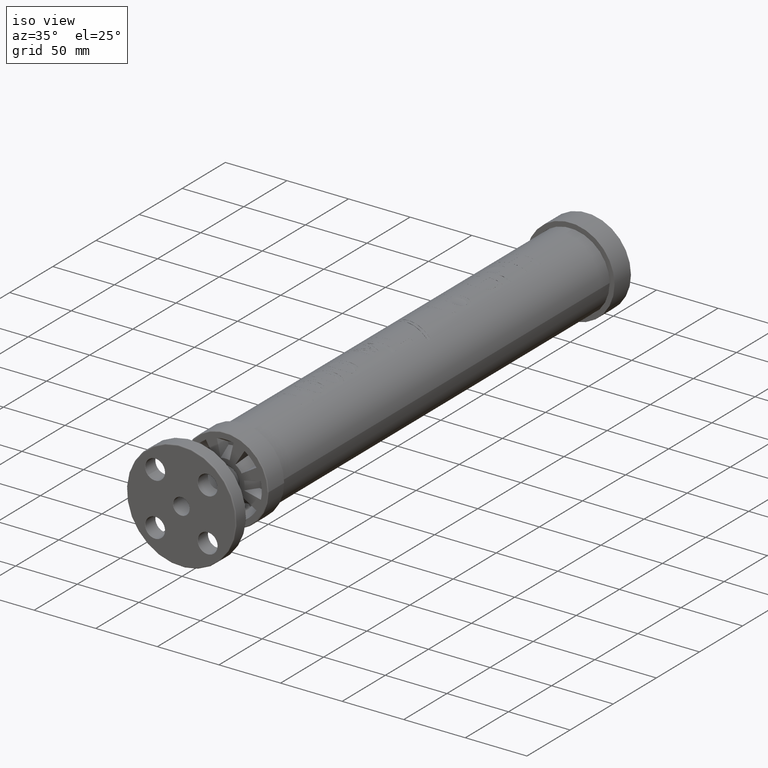
[diagram: clean part render]
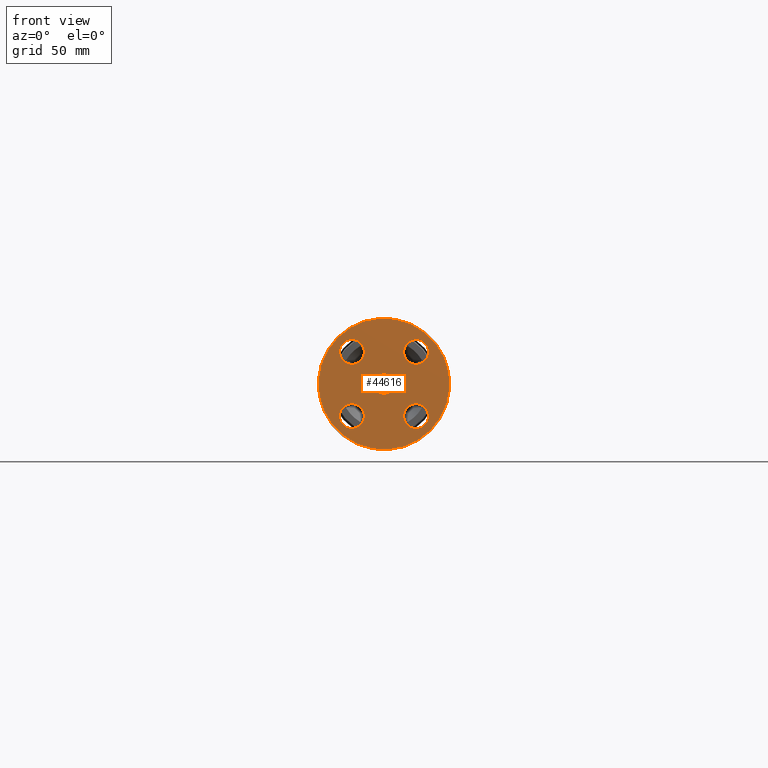
[diagram: tour spotlight — one face highlighted and labeled with its STEP entity id]
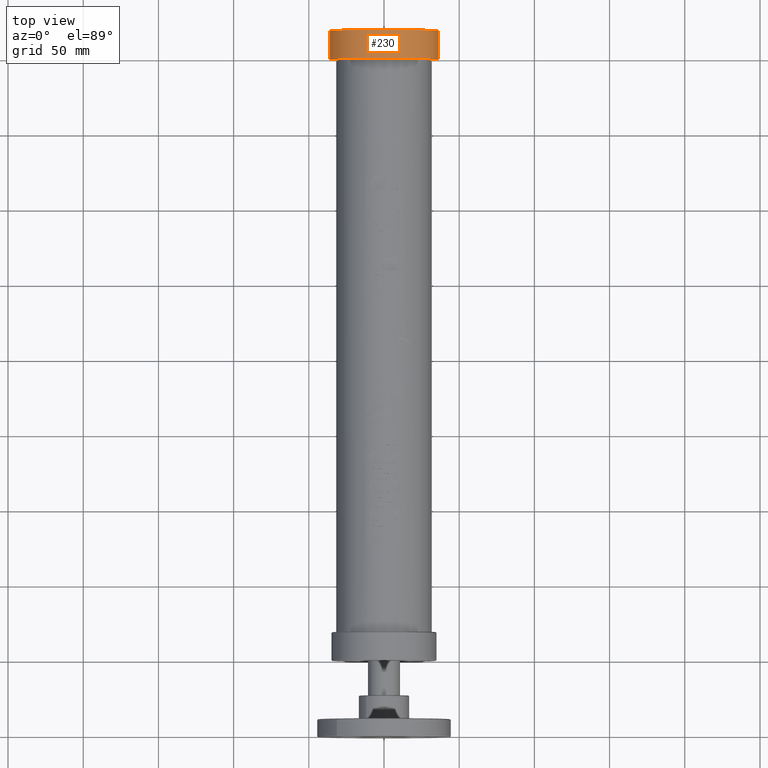
[diagram: tour spotlight — one face highlighted and labeled with its STEP entity id]
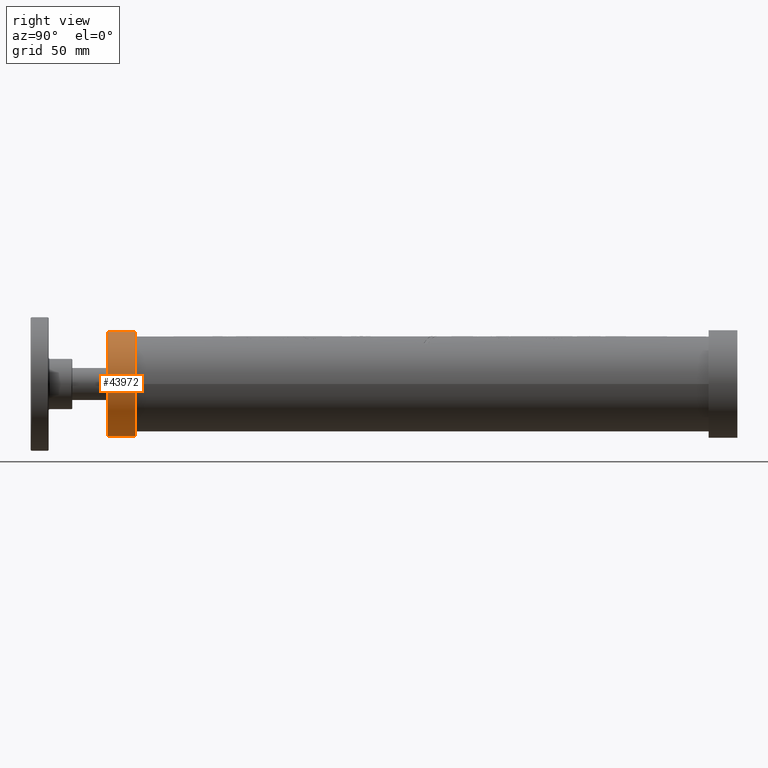
[diagram: tour spotlight — one face highlighted and labeled with its STEP entity id]
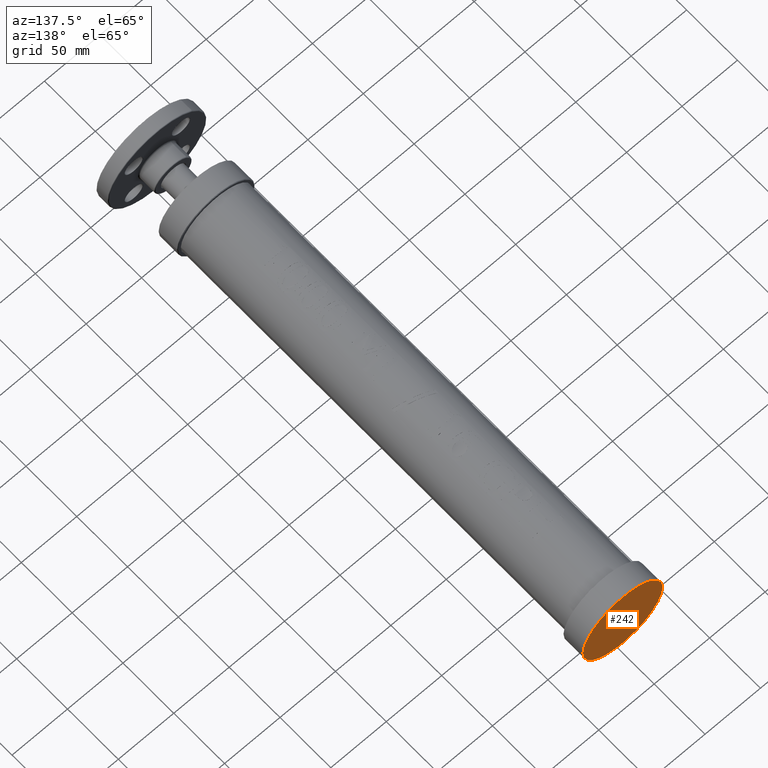
[diagram: tour spotlight — one face highlighted and labeled with its STEP entity id]
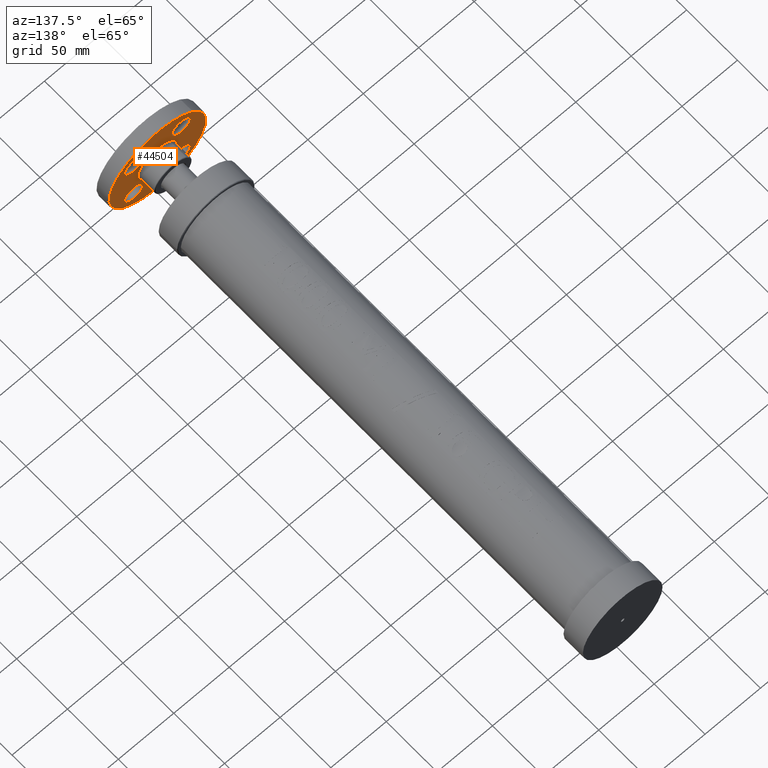
[diagram: tour spotlight — one face highlighted and labeled with its STEP entity id]
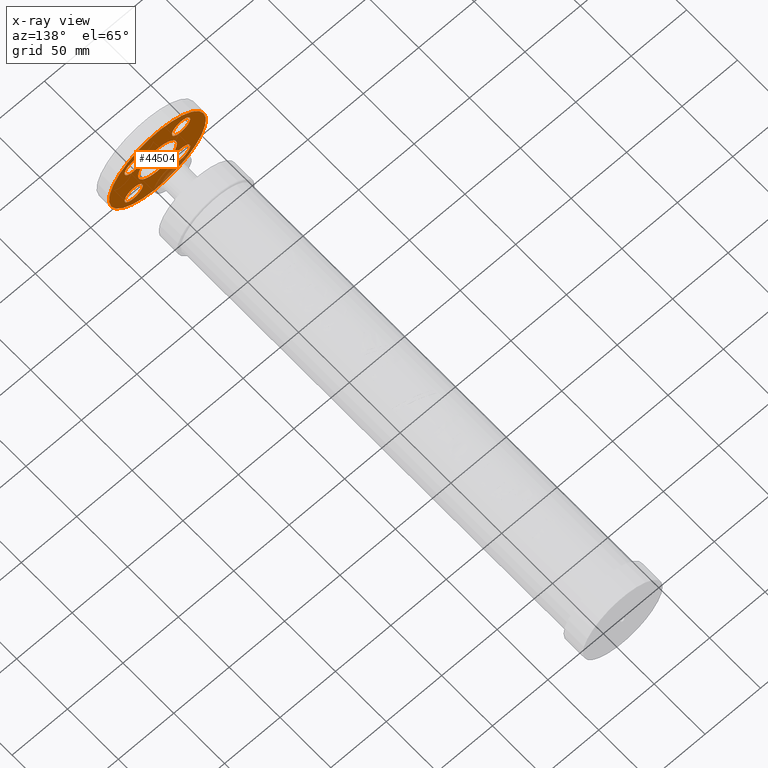
[diagram: x-ray of the same camera — body ghosted, this tour face saturated]
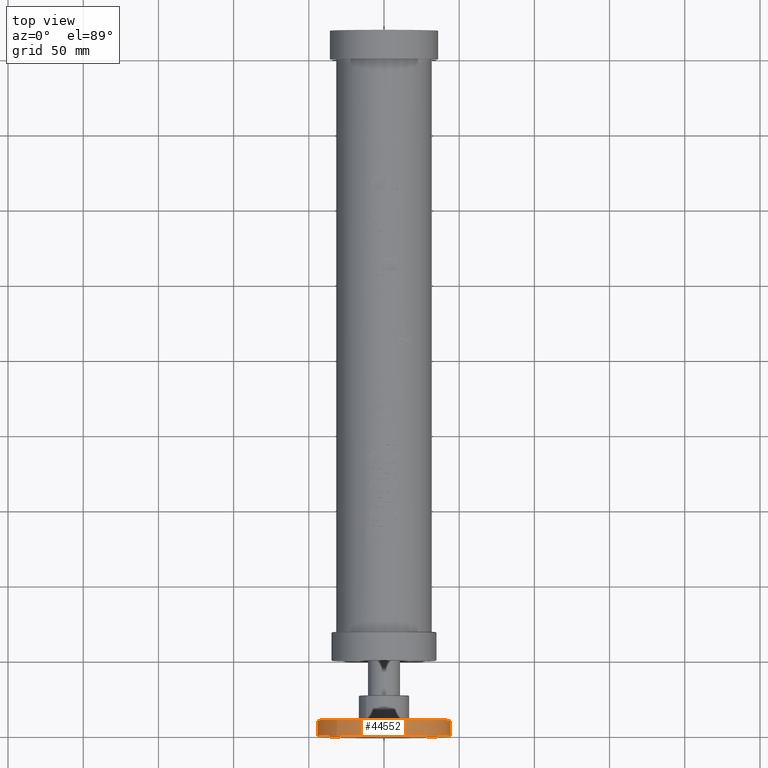
[diagram: tour spotlight — one face highlighted and labeled with its STEP entity id]
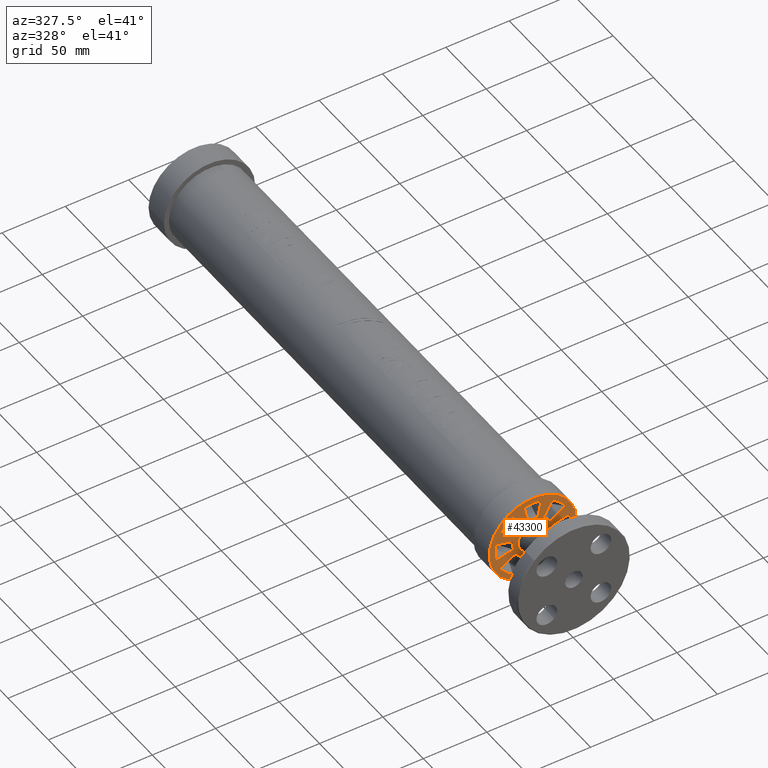
[diagram: tour spotlight — one face highlighted and labeled with its STEP entity id]
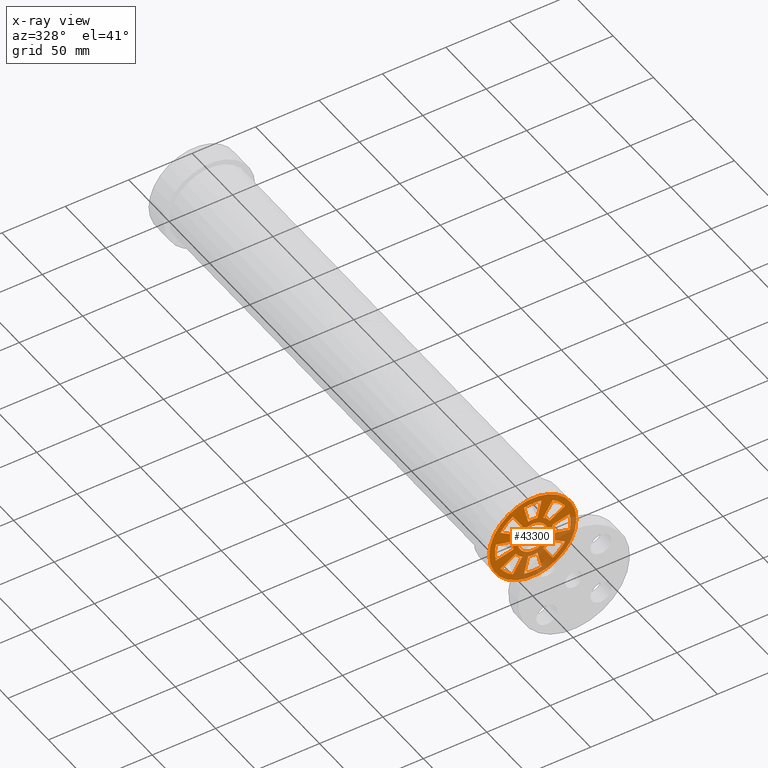
[diagram: x-ray of the same camera — body ghosted, this tour face saturated]
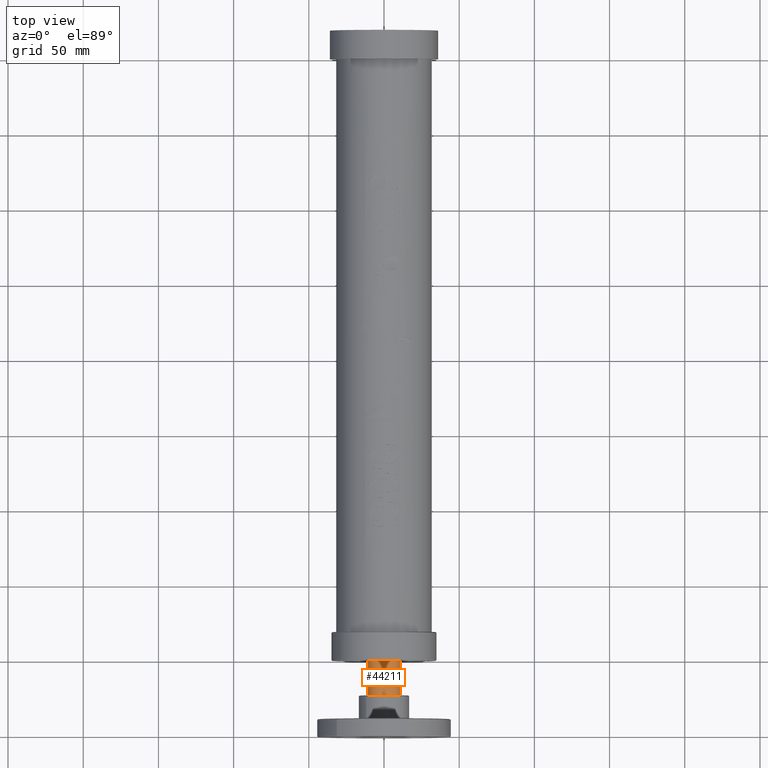
[diagram: tour spotlight — one face highlighted and labeled with its STEP entity id]
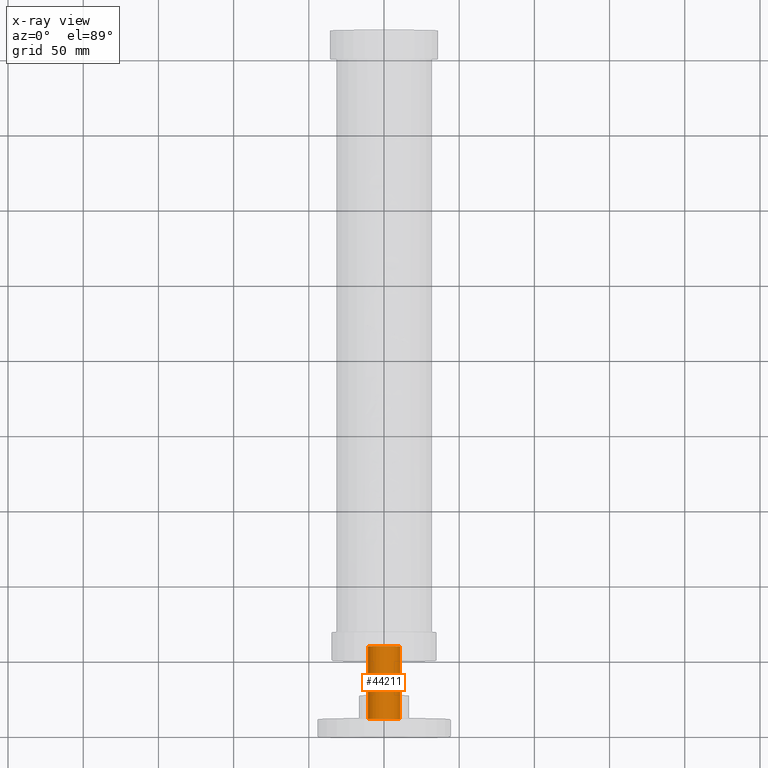
[diagram: x-ray of the same camera — body ghosted, this tour face saturated]
A machine part: a face-by-face anatomy tour. The part has 260 B-rep faces; the first image is the clean iso view, then the 8 largest visible faces are spotlighted one at a time (largest first), each with its STEP entity span.

Face 1 — front view, entity #44616. In plain terms, the highlighted planar face has unit normal (0, -1, 0).
Definition (entity closure, byte-faithful):
#44510=CARTESIAN_POINT('',(-1.216223663640862,-1.999999999999990,1.216223663640857));
#44511=VERTEX_POINT('',#44510);
#44512=CARTESIAN_POINT('',(6.310126E-017,-1.999999999999992,-5.024153E-015));
#44513=DIRECTION('',(7.121303E-016,1.000000000000000,-7.121303E-016));
#44514=DIRECTION('',(0.707106781186547,-1.007104E-015,-0.707106781186547));
#44515=AXIS2_PLACEMENT_3D('',#44512,#44513,#44514);
#44516=CIRCLE('',#44515,1.720000000000000);
#44517=EDGE_CURVE('',#44511,#44511,#44516,.T.);
#44553=CARTESIAN_POINT('',(-0.711702975264260,-1.999999999999991,0.711702975264255));
#44554=DIRECTION('',(0.0,-1.0,0.0));
#44555=DIRECTION('',(0.707106781186548,0.0,0.707106781186547));
#44556=AXIS2_PLACEMENT_3D('',#44553,#44554,#44555);
#44557=PLANE('',#44556);
#44558=ORIENTED_EDGE('',*,*,#44517,.F.);
#44559=EDGE_LOOP('',(#44558));
#44560=FACE_OUTER_BOUND('',#44559,.T.);
#44561=CARTESIAN_POINT('',(0.609879598773398,-1.999999999999992,1.069499006544648));
#44562=VERTEX_POINT('',#44561);
#44563=CARTESIAN_POINT('',(0.839689302659026,-1.999999999999993,0.839689302659020));
#44564=DIRECTION('',(-7.121303E-016,-1.0,7.121303E-016));
#44565=DIRECTION('',(0.707106781186547,-1.007104E-015,-0.707106781186548));
#44566=AXIS2_PLACEMENT_3D('',#44563,#44564,#44565);
#44567=CIRCLE('',#44566,0.325000000000000);
#44568=EDGE_CURVE('',#44562,#44562,#44567,.T.);
#44569=ORIENTED_EDGE('',*,*,#44568,.F.);
#44570=EDGE_LOOP('',(#44569));
#44571=FACE_BOUND('',#44570,.T.);
#44572=CARTESIAN_POINT('',(1.069499006544653,-1.999999999999993,-0.609879598773402));
#44573=VERTEX_POINT('',#44572);
#44574=CARTESIAN_POINT('',(0.839689302659025,-1.999999999999993,-0.839689302659030));
#44575=DIRECTION('',(-3.723273E-016,-1.0,-3.723273E-016));
#44576=DIRECTION('',(-0.707106781186548,5.265503E-016,-0.707106781186547));
#44577=AXIS2_PLACEMENT_3D('',#44574,#44575,#44576);
#44578=CIRCLE('',#44577,0.325000000000000);
#44579=EDGE_CURVE('',#44573,#44573,#44578,.T.);
#44580=ORIENTED_EDGE('',*,*,#44579,.F.);
#44581=EDGE_LOOP('',(#44580));
#44582=FACE_BOUND('',#44581,.T.);
#44583=CARTESIAN_POINT('',(-0.609879598773397,-1.999999999999991,-1.069499006544659));
#44584=VERTEX_POINT('',#44583);
#44585=CARTESIAN_POINT('',(-0.839689302659025,-1.999999999999991,-0.839689302659030));
#44586=DIRECTION('',(-7.121303E-016,-1.0,7.121303E-016));
#44587=DIRECTION('',(-0.707106781186547,1.007104E-015,0.707106781186548));
#44588=AXIS2_PLACEMENT_3D('',#44585,#44586,#44587);
#44589=CIRCLE('',#44588,0.325000000000000);
#44590=EDGE_CURVE('',#44584,#44584,#44589,.T.);
#44591=ORIENTED_EDGE('',*,*,#44590,.F.);
#44592=EDGE_LOOP('',(#44591));
#44593=FACE_BOUND('',#44592,.T.);
#44594=CARTESIAN_POINT('',(-0.193040151263927,-1.999999999999991,0.193040151263922));
#44595=VERTEX_POINT('',#44594);
#44596=CARTESIAN_POINT('',(6.310126E-017,-1.999999999999992,-5.024153E-015));
#44597=DIRECTION('',(-7.121303E-016,-1.000000000000000,7.121303E-016));
#44598=DIRECTION('',(0.707106781186547,-1.007104E-015,-0.707106781186548));
#44599=AXIS2_PLACEMENT_3D('',#44596,#44597,#44598);
#44600=CIRCLE('',#44599,0.273000000000000);
#44601=EDGE_CURVE('',#44595,#44595,#44600,.T.);
#44602=ORIENTED_EDGE('',*,*,#44601,.F.);
#44603=EDGE_LOOP('',(#44602));
#44604=FACE_BOUND('',#44603,.T.);
#44605=CARTESIAN_POINT('',(-1.069499006544653,-1.999999999999991,0.609879598773393));
#44606=VERTEX_POINT('',#44605);
#44607=CARTESIAN_POINT('',(-0.839689302659025,-1.999999999999991,0.839689302659020));
#44608=DIRECTION('',(-3.723273E-016,-1.0,-3.723273E-016));
#44609=DIRECTION('',(0.707106781186548,-5.265503E-016,0.707106781186547));
#44610=AXIS2_PLACEMENT_3D('',#44607,#44608,#44609);
#44611=CIRCLE('',#44610,0.325000000000000);
#44612=EDGE_CURVE('',#44606,#44606,#44611,.T.);
#44613=ORIENTED_EDGE('',*,*,#44612,.F.);
#44614=EDGE_LOOP('',(#44613));
#44615=FACE_BOUND('',#44614,.T.);
#44616=ADVANCED_FACE('',(#44560,#44571,#44582,#44593,#44604,#44615),#44557,.T.);

Face 2 — top view, entity #230. In plain terms, the highlighted cylindrical surface (bore or boss wall) has radius 35.9664 mm, axis along (-0, 1, -0).
Definition (entity closure, byte-faithful):
#196=CARTESIAN_POINT('',(-1.415999999999997,15.750000000000007,-5.685341E-015));
#197=VERTEX_POINT('',#196);
#198=CARTESIAN_POINT('',(2.875213E-015,15.750000000000007,-5.606737E-015));
#199=DIRECTION('',(0.0,1.0,0.0));
#200=DIRECTION('',(-1.0,0.0,0.0));
#201=AXIS2_PLACEMENT_3D('',#198,#199,#200);
#202=CIRCLE('',#201,1.416000000000000);
#203=EDGE_CURVE('',#197,#197,#202,.T.);
#211=CARTESIAN_POINT('',(2.813981E-015,16.125000000000007,-5.656292E-015));
#212=DIRECTION('',(-1.632862E-016,1.0,-1.321456E-016));
#213=DIRECTION('',(-1.0,0.0,0.0));
#214=AXIS2_PLACEMENT_3D('',#211,#212,#213);
#215=CYLINDRICAL_SURFACE('',#214,1.416000000000000);
#216=CARTESIAN_POINT('',(-1.415999999999997,16.500000000000007,-5.784450E-015));
#217=VERTEX_POINT('',#216);
#218=CARTESIAN_POINT('',(2.752749E-015,16.500000000000007,-5.705846E-015));
#219=DIRECTION('',(0.0,1.0,0.0));
#220=DIRECTION('',(-1.0,0.0,0.0));
#221=AXIS2_PLACEMENT_3D('',#218,#219,#220);
#222=CIRCLE('',#221,1.416000000000000);
#223=EDGE_CURVE('',#217,#217,#222,.T.);
#224=ORIENTED_EDGE('',*,*,#223,.F.);
#225=EDGE_LOOP('',(#224));
#226=FACE_OUTER_BOUND('',#225,.T.);
#227=ORIENTED_EDGE('',*,*,#203,.T.);
#228=EDGE_LOOP('',(#227));
#229=FACE_BOUND('',#228,.T.);
#230=ADVANCED_FACE('',(#226,#229),#215,.T.);

Face 3 — right view, entity #43972. In plain terms, the highlighted cylindrical surface (bore or boss wall) has radius 34.925 mm, axis along (0, 1, -0).
Definition (entity closure, byte-faithful):
#43941=CARTESIAN_POINT('',(1.374999999999972,0.020000000000000,-1.678447E-014));
#43942=VERTEX_POINT('',#43941);
#43943=CARTESIAN_POINT('',(-2.797412E-014,0.020000000000000,1.118965E-014));
#43944=DIRECTION('',(0.0,-1.0,0.0));
#43945=DIRECTION('',(1.0,0.0,0.0));
#43946=AXIS2_PLACEMENT_3D('',#43943,#43944,#43945);
#43947=CIRCLE('',#43946,1.375000000000000);
#43948=EDGE_CURVE('',#43942,#43942,#43947,.T.);
#43953=CARTESIAN_POINT('',(-2.797412E-014,0.375000000000003,1.118965E-014));
#43954=DIRECTION('',(4.437343E-031,1.0,-1.224647E-016));
#43955=DIRECTION('',(1.0,0.0,0.0));
#43956=AXIS2_PLACEMENT_3D('',#43953,#43954,#43955);
#43957=CYLINDRICAL_SURFACE('',#43956,1.375000000000000);
#43958=ORIENTED_EDGE('',*,*,#43948,.F.);
#43959=EDGE_LOOP('',(#43958));
#43960=FACE_OUTER_BOUND('',#43959,.T.);
#43961=CARTESIAN_POINT('',(1.374999999999972,0.730000000000005,-1.678447E-014));
#43962=VERTEX_POINT('',#43961);
#43963=CARTESIAN_POINT('',(-2.797412E-014,0.730000000000005,1.118965E-014));
#43964=DIRECTION('',(0.0,-1.0,0.0));
#43965=DIRECTION('',(1.0,0.0,0.0));
#43966=AXIS2_PLACEMENT_3D('',#43963,#43964,#43965);
#43967=CIRCLE('',#43966,1.375000000000000);
#43968=EDGE_CURVE('',#43962,#43962,#43967,.T.);
#43969=ORIENTED_EDGE('',*,*,#43968,.T.);
#43970=EDGE_LOOP('',(#43969));
#43971=FACE_BOUND('',#43970,.T.);
#43972=ADVANCED_FACE('',(#43960,#43971),#43957,.T.);

Face 4 — auxiliary view, entity #242. In plain terms, the highlighted planar face has unit normal (0, 1, 0).
Definition (entity closure, byte-faithful):
#156=CARTESIAN_POINT('',(-0.062499999999997,16.500000000000007,-5.709316E-015));
#157=VERTEX_POINT('',#156);
#158=CARTESIAN_POINT('',(2.752749E-015,16.500000000000007,-5.705846E-015));
#159=DIRECTION('',(0.0,-1.0,0.0));
#160=DIRECTION('',(-1.0,0.0,0.0));
#161=AXIS2_PLACEMENT_3D('',#158,#159,#160);
#162=CIRCLE('',#161,0.062500000000000);
#163=EDGE_CURVE('',#157,#157,#162,.T.);
#216=CARTESIAN_POINT('',(-1.415999999999997,16.500000000000007,-5.784450E-015));
#217=VERTEX_POINT('',#216);
#218=CARTESIAN_POINT('',(2.752749E-015,16.500000000000007,-5.705846E-015));
#219=DIRECTION('',(0.0,1.0,0.0));
#220=DIRECTION('',(-1.0,0.0,0.0));
#221=AXIS2_PLACEMENT_3D('',#218,#219,#220);
#222=CIRCLE('',#221,1.416000000000000);
#223=EDGE_CURVE('',#217,#217,#222,.T.);
#231=CARTESIAN_POINT('',(-0.707999999999997,16.500000000000007,-5.745148E-015));
#232=DIRECTION('',(0.0,1.0,0.0));
#233=DIRECTION('',(0.0,0.0,1.0));
#234=AXIS2_PLACEMENT_3D('',#231,#232,#233);
#235=PLANE('',#234);
#236=ORIENTED_EDGE('',*,*,#223,.T.);
#237=EDGE_LOOP('',(#236));
#238=FACE_OUTER_BOUND('',#237,.T.);
#239=ORIENTED_EDGE('',*,*,#163,.T.);
#240=EDGE_LOOP('',(#239));
#241=FACE_BOUND('',#240,.T.);
#242=ADVANCED_FACE('',(#238,#241),#235,.T.);

Face 5 — auxiliary view, entity #44504. An x-ray twin of the same camera follows (body ghosted, this face saturated) — the face is partly hidden behind the body. In plain terms, the highlighted planar face has unit normal (0, 1, 0).
Definition (entity closure, byte-faithful):
#44426=CARTESIAN_POINT('',(-0.488080455714014,-1.529999999999991,0.488080455714010));
#44427=VERTEX_POINT('',#44426);
#44428=CARTESIAN_POINT('',(5.727963E-016,-1.529999999999992,-5.183861E-015));
#44429=DIRECTION('',(7.121303E-016,1.0,-7.121303E-016));
#44430=DIRECTION('',(0.707106781186547,-1.007104E-015,-0.707106781186548));
#44431=AXIS2_PLACEMENT_3D('',#44428,#44429,#44430);
#44432=CIRCLE('',#44431,0.690250000000000);
#44433=EDGE_CURVE('',#44427,#44427,#44432,.T.);
#44441=CARTESIAN_POINT('',(-0.852152059677438,-1.529999999999991,0.852152059677433));
#44442=DIRECTION('',(0.0,1.0,0.0));
#44443=DIRECTION('',(-0.707106781186548,0.0,-0.707106781186547));
#44444=AXIS2_PLACEMENT_3D('',#44441,#44442,#44443);
#44445=PLANE('',#44444);
#44446=CARTESIAN_POINT('',(-1.216223663640862,-1.529999999999990,1.216223663640857));
#44447=VERTEX_POINT('',#44446);
#44448=CARTESIAN_POINT('',(5.727963E-016,-1.529999999999992,-5.183861E-015));
#44449=DIRECTION('',(-7.121303E-016,-1.000000000000000,7.121303E-016));
#44450=DIRECTION('',(0.707106781186547,-1.007104E-015,-0.707106781186547));
#44451=AXIS2_PLACEMENT_3D('',#44448,#44449,#44450);
#44452=CIRCLE('',#44451,1.720000000000000);
#44453=EDGE_CURVE('',#44447,#44447,#44452,.T.);
#44454=ORIENTED_EDGE('',*,*,#44453,.F.);
#44455=EDGE_LOOP('',(#44454));
#44456=FACE_OUTER_BOUND('',#44455,.T.);
#44457=CARTESIAN_POINT('',(-0.609879598773397,-1.529999999999992,-1.069499006544659));
#44458=VERTEX_POINT('',#44457);
#44459=CARTESIAN_POINT('',(-0.839689302659025,-1.529999999999991,-0.839689302659031));
#44460=DIRECTION('',(7.121303E-016,1.0,-7.121303E-016));
#44461=DIRECTION('',(-0.707106781186547,1.007104E-015,0.707106781186548));
#44462=AXIS2_PLACEMENT_3D('',#44459,#44460,#44461);
#44463=CIRCLE('',#44462,0.325000000000000);
#44464=EDGE_CURVE('',#44458,#44458,#44463,.T.);
#44465=ORIENTED_EDGE('',*,*,#44464,.F.);
#44466=EDGE_LOOP('',(#44465));
#44467=FACE_BOUND('',#44466,.T.);
#44468=CARTESIAN_POINT('',(-1.069499006544653,-1.529999999999991,0.609879598773392));
#44469=VERTEX_POINT('',#44468);
#44470=CARTESIAN_POINT('',(-0.839689302659025,-1.529999999999991,0.839689302659020));
#44471=DIRECTION('',(3.723273E-016,1.0,3.723273E-016));
#44472=DIRECTION('',(0.707106781186548,-5.265503E-016,0.707106781186547));
#44473=AXIS2_PLACEMENT_3D('',#44470,#44471,#44472);
#44474=CIRCLE('',#44473,0.325000000000000);
#44475=EDGE_CURVE('',#44469,#44469,#44474,.T.);
#44476=ORIENTED_EDGE('',*,*,#44475,.F.);
#44477=EDGE_LOOP('',(#44476));
#44478=FACE_BOUND('',#44477,.T.);
#44479=CARTESIAN_POINT('',(0.609879598773398,-1.529999999999992,1.069499006544648));
#44480=VERTEX_POINT('',#44479);
#44481=CARTESIAN_POINT('',(0.839689302659026,-1.529999999999993,0.839689302659020));
#44482=DIRECTION('',(7.121303E-016,1.0,-7.121303E-016));
#44483=DIRECTION('',(0.707106781186547,-1.007104E-015,-0.707106781186548));
#44484=AXIS2_PLACEMENT_3D('',#44481,#44482,#44483);
#44485=CIRCLE('',#44484,0.325000000000000);
#44486=EDGE_CURVE('',#44480,#44480,#44485,.T.);
#44487=ORIENTED_EDGE('',*,*,#44486,.F.);
#44488=EDGE_LOOP('',(#44487));
#44489=FACE_BOUND('',#44488,.T.);
#44490=CARTESIAN_POINT('',(1.069499006544654,-1.529999999999993,-0.609879598773403));
#44491=VERTEX_POINT('',#44490);
#44492=CARTESIAN_POINT('',(0.839689302659026,-1.529999999999993,-0.839689302659031));
#44493=DIRECTION('',(3.723273E-016,1.0,3.723273E-016));
#44494=DIRECTION('',(-0.707106781186548,5.265503E-016,-0.707106781186547));
#44495=AXIS2_PLACEMENT_3D('',#44492,#44493,#44494);
#44496=CIRCLE('',#44495,0.325000000000000);
#44497=EDGE_CURVE('',#44491,#44491,#44496,.T.);
#44498=ORIENTED_EDGE('',*,*,#44497,.F.);
#44499=EDGE_LOOP('',(#44498));
#44500=FACE_BOUND('',#44499,.T.);
#44501=ORIENTED_EDGE('',*,*,#44433,.F.);
#44502=EDGE_LOOP('',(#44501));
#44503=FACE_BOUND('',#44502,.T.);
#44504=ADVANCED_FACE('',(#44456,#44467,#44478,#44489,#44500,#44503),#44445,.T.);

Face 6 — top view, entity #44552. In plain terms, the highlighted cylindrical surface (bore or boss wall) has radius 44.45 mm, axis along (0, 1, -0).
Definition (entity closure, byte-faithful):
#44521=CARTESIAN_POINT('',(-1.237436867076459,-1.969999999999990,1.237436867076453));
#44522=VERTEX_POINT('',#44521);
#44523=CARTESIAN_POINT('',(9.563498E-017,-1.969999999999992,-5.034347E-015));
#44524=DIRECTION('',(-7.121303E-016,-1.0,7.121303E-016));
#44525=DIRECTION('',(0.707106781186547,-1.007104E-015,-0.707106781186548));
#44526=AXIS2_PLACEMENT_3D('',#44523,#44524,#44525);
#44527=CIRCLE('',#44526,1.750000000000000);
#44528=EDGE_CURVE('',#44522,#44522,#44527,.T.);
#44533=CARTESIAN_POINT('',(3.179488E-016,-1.764999999999992,-5.104007E-015));
#44534=DIRECTION('',(1.084458E-015,1.0,-3.398030E-016));
#44535=DIRECTION('',(-0.707106781186547,1.007104E-015,0.707106781186548));
#44536=AXIS2_PLACEMENT_3D('',#44533,#44534,#44535);
#44537=CYLINDRICAL_SURFACE('',#44536,1.750000000000000);
#44538=CARTESIAN_POINT('',(-1.237436867076458,-1.559999999999990,1.237436867076454));
#44539=VERTEX_POINT('',#44538);
#44540=CARTESIAN_POINT('',(5.402626E-016,-1.559999999999992,-5.173667E-015));
#44541=DIRECTION('',(7.121303E-016,1.0,-7.121303E-016));
#44542=DIRECTION('',(0.707106781186547,-1.007104E-015,-0.707106781186548));
#44543=AXIS2_PLACEMENT_3D('',#44540,#44541,#44542);
#44544=CIRCLE('',#44543,1.750000000000000);
#44545=EDGE_CURVE('',#44539,#44539,#44544,.T.);
#44546=ORIENTED_EDGE('',*,*,#44545,.F.);
#44547=EDGE_LOOP('',(#44546));
#44548=FACE_OUTER_BOUND('',#44547,.T.);
#44549=ORIENTED_EDGE('',*,*,#44528,.F.);
#44550=EDGE_LOOP('',(#44549));
#44551=FACE_BOUND('',#44550,.T.);
#44552=ADVANCED_FACE('',(#44548,#44551),#44537,.T.);

Face 7 — auxiliary view, entity #43300. An x-ray twin of the same camera follows (body ghosted, this face saturated) — the face is partly hidden behind the body. In plain terms, the highlighted planar face has unit normal (0, -1, 0).
Definition (entity closure, byte-faithful):
#42348=CARTESIAN_POINT('',(0.603473443336327,2.622574E-015,0.142196354340567));
#42349=VERTEX_POINT('',#42348);
#42373=CARTESIAN_POINT('',(1.143679509548720,6.031920E-015,0.269485026371239));
#42374=VERTEX_POINT('',#42373);
#42388=CARTESIAN_POINT('',(1.143679509548716,7.645285E-016,0.269485026371252));
#42389=DIRECTION('',(-0.973344263445751,7.376425E-017,-0.229348958613831));
#42390=VECTOR('',#42389,0.554999999999999);
#42391=LINE('',#42388,#42390);
#42392=EDGE_CURVE('',#42374,#42349,#42391,.T.);
#42402=CARTESIAN_POINT('',(0.326172157634873,2.709993E-015,0.527268170463353));
#42403=VERTEX_POINT('',#42402);
#42427=CARTESIAN_POINT('',(0.618148847130643,5.769663E-015,0.999258226281360));
#42428=VERTEX_POINT('',#42427);
#42442=CARTESIAN_POINT('',(0.618148847130638,2.992283E-016,0.999258226281363));
#42443=DIRECTION('',(-0.526084125217603,2.735200E-016,-0.850432533005429));
#42444=VECTOR('',#42443,0.554999999999995);
#42445=LINE('',#42442,#42444);
#42446=EDGE_CURVE('',#42428,#42403,#42445,.T.);
#42511=CARTESIAN_POINT('',(0.527268170463331,2.622574E-015,0.326172157634895));
#42512=VERTEX_POINT('',#42511);
#42513=CARTESIAN_POINT('',(-4.196119E-014,7.867722E-016,-1.678447E-014));
#42514=DIRECTION('',(7.179801E-017,1.0,1.691775E-017));
#42515=DIRECTION('',(0.973344263445751,-7.376425E-017,0.229348958613830));
#42516=AXIS2_PLACEMENT_3D('',#42513,#42514,#42515);
#42517=CIRCLE('',#42516,0.620000000000004);
#42518=EDGE_CURVE('',#42403,#42512,#42517,.T.);
#42544=CARTESIAN_POINT('',(0.999258226281343,5.682244E-015,0.618148847130668));
#42545=VERTEX_POINT('',#42544);
#42546=CARTESIAN_POINT('',(0.527268170463330,8.202403E-016,0.326172157634896));
#42547=DIRECTION('',(0.850432533005428,-1.692016E-016,0.526084125217604));
#42548=VECTOR('',#42547,0.555000000000001);
#42549=LINE('',#42546,#42548);
#42550=EDGE_CURVE('',#42512,#42545,#42549,.T.);
#42597=CARTESIAN_POINT('',(-4.196119E-014,7.867722E-016,-1.678447E-014));
#42598=DIRECTION('',(-7.179801E-017,-1.0,-1.691775E-017));
#42599=DIRECTION('',(0.973344263445751,-7.376425E-017,0.229348958613830));
#42600=AXIS2_PLACEMENT_3D('',#42597,#42598,#42599);
#42601=CIRCLE('',#42600,1.175000000000002);
#42602=EDGE_CURVE('',#42545,#42428,#42601,.T.);
#42612=CARTESIAN_POINT('',(-0.142196354340597,2.272898E-015,0.603473443336367));
#42613=VERTEX_POINT('',#42612);
#42637=CARTESIAN_POINT('',(-0.269485026371270,5.857082E-015,1.143679509548753));
#42638=VERTEX_POINT('',#42637);
#42652=CARTESIAN_POINT('',(-0.269485026371280,1.722320E-016,1.143679509548751));
#42653=DIRECTION('',(0.229348958613832,3.130514E-016,-0.973344263445751));
#42654=VECTOR('',#42653,0.554999999999994);
#42655=LINE('',#42652,#42654);
#42656=EDGE_CURVE('',#42638,#42613,#42655,.T.);
#42721=CARTESIAN_POINT('',(0.142196354340555,2.185478E-015,0.603473443336367));
#42722=VERTEX_POINT('',#42721);
#42723=CARTESIAN_POINT('',(-2.797412E-014,7.867722E-016,-5.594825E-015));
#42724=DIRECTION('',(1.438945E-016,1.000000000000000,2.326103E-016));
#42725=DIRECTION('',(0.526084125217604,-2.735200E-016,0.850432533005428));
#42726=AXIS2_PLACEMENT_3D('',#42723,#42724,#42725);
#42727=CIRCLE('',#42726,0.620000000000004);
#42728=EDGE_CURVE('',#42613,#42722,#42727,.T.);
#42754=CARTESIAN_POINT('',(0.269485026371228,5.857082E-015,1.143679509548753));
#42755=VERTEX_POINT('',#42754);
#42756=CARTESIAN_POINT('',(0.142196354340554,4.109886E-016,0.603473443336367));
#42757=DIRECTION('',(0.229348958613830,-3.130514E-016,0.973344263445751));
#42758=VECTOR('',#42757,0.554999999999994);
#42759=LINE('',#42756,#42758);
#42760=EDGE_CURVE('',#42722,#42755,#42759,.T.);
#42807=CARTESIAN_POINT('',(-2.797412E-014,7.867722E-016,-5.594825E-015));
#42808=DIRECTION('',(-1.438945E-016,-1.0,-2.326103E-016));
#42809=DIRECTION('',(0.526084125217604,-2.735200E-016,0.850432533005428));
#42810=AXIS2_PLACEMENT_3D('',#42807,#42808,#42809);
#42811=CIRCLE('',#42810,1.175000000000002);
#42812=EDGE_CURVE('',#42755,#42638,#42811,.T.);
#42822=CARTESIAN_POINT('',(-0.527268170463387,2.797412E-015,0.326172157634895));
#42823=VERTEX_POINT('',#42822);
#42847=CARTESIAN_POINT('',(-0.999258226281399,5.944501E-015,0.618148847130679));
#42848=VERTEX_POINT('',#42847);
#42862=CARTESIAN_POINT('',(-0.999258226281407,6.834561E-016,0.618148847130666));
#42863=DIRECTION('',(0.850432533005429,1.692016E-016,-0.526084125217603));
#42864=VECTOR('',#42863,0.555000000000007);
#42865=LINE('',#42862,#42864);
#42866=EDGE_CURVE('',#42848,#42823,#42865,.T.);
#42931=CARTESIAN_POINT('',(-0.326172157634942,2.797412E-015,0.527268170463353));
#42932=VERTEX_POINT('',#42931);
#42933=CARTESIAN_POINT('',(-1.398706E-014,7.867722E-016,-5.594825E-015));
#42934=DIRECTION('',(-7.179801E-017,1.0,3.047068E-016));
#42935=DIRECTION('',(-0.229348958613830,-3.130514E-016,0.973344263445751));
#42936=AXIS2_PLACEMENT_3D('',#42933,#42934,#42935);
#42937=CIRCLE('',#42936,0.620000000000004);
#42938=EDGE_CURVE('',#42823,#42932,#42937,.T.);
#42964=CARTESIAN_POINT('',(-0.618148847130710,5.944501E-015,0.999258226281360));
#42965=VERTEX_POINT('',#42964);
#42966=CARTESIAN_POINT('',(-0.326172157634935,7.578311E-016,0.527268170463358));
#42967=DIRECTION('',(-0.526084125217604,-2.735200E-016,0.850432533005428));
#42968=VECTOR('',#42967,0.554999999999994);
#42969=LINE('',#42966,#42968);
#42970=EDGE_CURVE('',#42932,#42965,#42969,.T.);
#43017=CARTESIAN_POINT('',(-1.398706E-014,7.867722E-016,-5.594825E-015));
#43018=DIRECTION('',(7.179801E-017,-1.0,-3.047068E-016));
#43019=DIRECTION('',(-0.229348958613830,-3.130514E-016,0.973344263445751));
#43020=AXIS2_PLACEMENT_3D('',#43017,#43018,#43019);
#43021=CIRCLE('',#43020,1.175000000000003);
#43022=EDGE_CURVE('',#42965,#42848,#43021,.T.);
#43042=CARTESIAN_POINT('',(-0.603473443336397,2.797412E-015,0.142196354340567));
#43043=VERTEX_POINT('',#43042);
#43057=CARTESIAN_POINT('',(-1.143679509548790,6.294178E-015,0.269485026371239));
#43058=VERTEX_POINT('',#43057);
#43059=CARTESIAN_POINT('',(-0.603473443336395,7.404546E-016,0.142196354340577));
#43060=DIRECTION('',(-0.973344263445751,-7.376425E-017,0.229348958613830));
#43061=VECTOR('',#43060,0.555000000000000);
#43062=LINE('',#43059,#43061);
#43063=EDGE_CURVE('',#43043,#43058,#43062,.T.);
#43089=CARTESIAN_POINT('',(0.459999999999812,7.867722E-016,2.797412E-014));
#43090=VERTEX_POINT('',#43089);
#43091=CARTESIAN_POINT('',(-2.517671E-014,7.867722E-016,5.594825E-015));
#43092=DIRECTION('',(1.224647E-016,1.0,1.544937E-028));
#43093=DIRECTION('',(-1.0,1.224647E-016,-1.261537E-012));
#43094=AXIS2_PLACEMENT_3D('',#43091,#43092,#43093);
#43095=CIRCLE('',#43094,0.459999999999837);
#43096=EDGE_CURVE('',#43090,#43090,#43095,.T.);
#43101=CARTESIAN_POINT('',(0.905499999999970,6.993531E-016,1.118965E-014));
#43102=DIRECTION('',(0.0,-1.0,0.0));
#43103=DIRECTION('',(-1.0,0.0,0.0));
#43104=AXIS2_PLACEMENT_3D('',#43101,#43102,#43103);
#43105=PLANE('',#43104);
#43106=CARTESIAN_POINT('',(1.354999999999968,6.993531E-016,-1.678447E-014));
#43107=VERTEX_POINT('',#43106);
#43108=CARTESIAN_POINT('',(-2.797412E-014,7.867722E-016,1.118965E-014));
#43109=DIRECTION('',(0.0,-1.0,0.0));
#43110=DIRECTION('',(1.0,0.0,0.0));
#43111=AXIS2_PLACEMENT_3D('',#43108,#43109,#43110);
#43112=CIRCLE('',#43111,1.354999999999997);
#43113=EDGE_CURVE('',#43107,#43107,#43112,.T.);
#43114=ORIENTED_EDGE('',*,*,#43113,.T.);
#43115=EDGE_LOOP('',(#43114));
#43116=FACE_OUTER_BOUND('',#43115,.T.);
#43117=ORIENTED_EDGE('',*,*,#43096,.T.);
#43118=EDGE_LOOP('',(#43117));
#43119=FACE_BOUND('',#43118,.T.);
#43120=CARTESIAN_POINT('',(0.603473443336327,2.535155E-015,-0.142196354340572));
#43121=VERTEX_POINT('',#43120);
#43122=CARTESIAN_POINT('',(-4.196119E-014,7.867722E-016,1.118965E-014));
#43123=DIRECTION('',(5.479058E-017,-1.000000000000000,3.389388E-017));
#43124=DIRECTION('',(0.850432533005428,6.442672E-017,0.526084125217604));
#43125=AXIS2_PLACEMENT_3D('',#43122,#43123,#43124);
#43126=CIRCLE('',#43125,0.620000000000004);
#43127=EDGE_CURVE('',#43121,#42349,#43126,.T.);
#43128=ORIENTED_EDGE('',*,*,#43127,.T.);
#43129=ORIENTED_EDGE('',*,*,#42392,.F.);
#43130=CARTESIAN_POINT('',(1.143679509548720,6.031920E-015,-0.269485026371244));
#43131=VERTEX_POINT('',#43130);
#43132=CARTESIAN_POINT('',(-4.196119E-014,7.867722E-016,1.118965E-014));
#43133=DIRECTION('',(-5.479058E-017,1.0,-3.389388E-017));
#43134=DIRECTION('',(0.850432533005428,6.442672E-017,0.526084125217604));
#43135=AXIS2_PLACEMENT_3D('',#43132,#43133,#43134);
#43136=CIRCLE('',#43135,1.175000000000003);
#43137=EDGE_CURVE('',#42374,#43131,#43136,.T.);
#43138=ORIENTED_EDGE('',*,*,#43137,.T.);
#43139=CARTESIAN_POINT('',(1.143679509548718,6.908834E-016,-0.269485026371252));
#43140=DIRECTION('',(-0.973344263445751,2.808715E-017,0.229348958613831));
#43141=VECTOR('',#43140,0.555000000000000);
#43142=LINE('',#43139,#43141);
#43143=EDGE_CURVE('',#43131,#43121,#43142,.T.);
#43144=ORIENTED_EDGE('',*,*,#43143,.T.);
#43145=EDGE_LOOP('',(#43128,#43129,#43138,#43144));
#43146=FACE_BOUND('',#43145,.T.);
#43147=CARTESIAN_POINT('',(-0.603473443336397,2.709993E-015,-0.142196354340572));
#43148=VERTEX_POINT('',#43147);
#43149=CARTESIAN_POINT('',(-2.797412E-014,7.867722E-016,1.118965E-014));
#43150=DIRECTION('',(5.479058E-017,-1.0,3.389388E-017));
#43151=DIRECTION('',(-0.850432533005428,-6.442672E-017,-0.526084125217604));
#43152=AXIS2_PLACEMENT_3D('',#43149,#43150,#43151);
#43153=CIRCLE('',#43152,0.620000000000004);
#43154=EDGE_CURVE('',#43043,#43148,#43153,.T.);
#43155=ORIENTED_EDGE('',*,*,#43154,.T.);
#43156=CARTESIAN_POINT('',(-1.143679509548790,6.294178E-015,-0.269485026371244));
#43157=VERTEX_POINT('',#43156);
#43158=CARTESIAN_POINT('',(-0.603473443336396,7.691359E-016,-0.142196354340577));
#43159=DIRECTION('',(-0.973344263445751,-2.808715E-017,-0.229348958613830));
#43160=VECTOR('',#43159,0.554999999999999);
#43161=LINE('',#43158,#43160);
#43162=EDGE_CURVE('',#43148,#43157,#43161,.T.);
#43163=ORIENTED_EDGE('',*,*,#43162,.T.);
#43164=CARTESIAN_POINT('',(-2.797412E-014,7.867722E-016,-1.678447E-014));
#43165=DIRECTION('',(5.479058E-017,-1.0,3.389388E-017));
#43166=DIRECTION('',(-0.850432533005428,-6.442672E-017,-0.526084125217604));
#43167=AXIS2_PLACEMENT_3D('',#43164,#43165,#43166);
#43168=CIRCLE('',#43167,1.175000000000003);
#43169=EDGE_CURVE('',#43058,#43157,#43168,.T.);
#43170=ORIENTED_EDGE('',*,*,#43169,.F.);
#43171=ORIENTED_EDGE('',*,*,#43063,.F.);
#43172=EDGE_LOOP('',(#43155,#43163,#43170,#43171));
#43173=FACE_BOUND('',#43172,.T.);
#43174=ORIENTED_EDGE('',*,*,#42446,.F.);
#43175=ORIENTED_EDGE('',*,*,#42602,.F.);
#43176=ORIENTED_EDGE('',*,*,#42550,.F.);
#43177=ORIENTED_EDGE('',*,*,#42518,.F.);
#43178=EDGE_LOOP('',(#43174,#43175,#43176,#43177));
#43179=FACE_BOUND('',#43178,.T.);
#43180=ORIENTED_EDGE('',*,*,#42656,.F.);
#43181=ORIENTED_EDGE('',*,*,#42812,.F.);
#43182=ORIENTED_EDGE('',*,*,#42760,.F.);
#43183=ORIENTED_EDGE('',*,*,#42728,.F.);
#43184=EDGE_LOOP('',(#43180,#43181,#43182,#43183));
#43185=FACE_BOUND('',#43184,.T.);
#43186=ORIENTED_EDGE('',*,*,#42866,.F.);
#43187=ORIENTED_EDGE('',*,*,#43022,.F.);
#43188=ORIENTED_EDGE('',*,*,#42970,.F.);
#43189=ORIENTED_EDGE('',*,*,#42938,.F.);
#43190=EDGE_LOOP('',(#43186,#43187,#43188,#43189));
#43191=FACE_BOUND('',#43190,.T.);
#43192=CARTESIAN_POINT('',(0.618148847130643,5.944501E-015,-0.999258226281360));
#43193=VERTEX_POINT('',#43192);
#43194=CARTESIAN_POINT('',(0.326172157634873,2.535155E-015,-0.527268170463348));
#43195=VERTEX_POINT('',#43194);
#43196=CARTESIAN_POINT('',(0.618148847130635,6.468575E-016,-0.999258226281365));
#43197=DIRECTION('',(-0.526084125217603,1.041479E-016,0.850432533005429));
#43198=VECTOR('',#43197,0.555000000000000);
#43199=LINE('',#43196,#43198);
#43200=EDGE_CURVE('',#43193,#43195,#43199,.T.);
#43201=ORIENTED_EDGE('',*,*,#43200,.T.);
#43202=CARTESIAN_POINT('',(0.527268170463331,2.535155E-015,-0.326172157634900));
#43203=VERTEX_POINT('',#43202);
#43204=CARTESIAN_POINT('',(-4.196119E-014,7.867722E-016,1.118965E-014));
#43205=DIRECTION('',(-2.733846E-017,-1.0,6.441758E-018));
#43206=DIRECTION('',(0.973344263445751,-2.808715E-017,-0.229348958613830));
#43207=AXIS2_PLACEMENT_3D('',#43204,#43205,#43206);
#43208=CIRCLE('',#43207,0.620000000000004);
#43209=EDGE_CURVE('',#43195,#43203,#43208,.T.);
#43210=ORIENTED_EDGE('',*,*,#43209,.T.);
#43211=CARTESIAN_POINT('',(0.999258226281343,5.944501E-015,-0.618148847130674));
#43212=VERTEX_POINT('',#43211);
#43213=CARTESIAN_POINT('',(0.527268170463335,7.120967E-016,-0.326172157634894));
#43214=DIRECTION('',(0.850432533005428,-6.442672E-017,-0.526084125217604));
#43215=VECTOR('',#43214,0.555000000000001);
#43216=LINE('',#43213,#43215);
#43217=EDGE_CURVE('',#43203,#43212,#43216,.T.);
#43218=ORIENTED_EDGE('',*,*,#43217,.T.);
#43219=CARTESIAN_POINT('',(-4.196119E-014,7.867722E-016,1.118965E-014));
#43220=DIRECTION('',(2.733846E-017,1.0,-6.441758E-018));
#43221=DIRECTION('',(0.973344263445751,-2.808715E-017,-0.229348958613830));
#43222=AXIS2_PLACEMENT_3D('',#43219,#43220,#43221);
#43223=CIRCLE('',#43222,1.175000000000002);
#43224=EDGE_CURVE('',#43212,#43193,#43223,.T.);
#43225=ORIENTED_EDGE('',*,*,#43224,.T.);
#43226=EDGE_LOOP('',(#43201,#43210,#43218,#43225));
#43227=FACE_BOUND('',#43226,.T.);
#43228=CARTESIAN_POINT('',(-0.269485026371270,6.031920E-015,-1.143679509548748));
#43229=VERTEX_POINT('',#43228);
#43230=CARTESIAN_POINT('',(-0.142196354340597,2.622574E-015,-0.603473443336361));
#43231=VERTEX_POINT('',#43230);
#43232=CARTESIAN_POINT('',(-0.269485026371277,6.859203E-016,-1.143679509548746));
#43233=DIRECTION('',(0.229348958613832,1.192003E-016,0.973344263445751));
#43234=VECTOR('',#43233,0.554999999999994);
#43235=LINE('',#43232,#43234);
#43236=EDGE_CURVE('',#43229,#43231,#43235,.T.);
#43237=ORIENTED_EDGE('',*,*,#43236,.T.);
#43238=CARTESIAN_POINT('',(0.142196354340555,2.535155E-015,-0.603473443336361));
#43239=VERTEX_POINT('',#43238);
#43240=CARTESIAN_POINT('',(-2.797412E-014,7.867722E-016,1.118965E-014));
#43241=DIRECTION('',(-5.479058E-017,-1.000000000000000,8.857080E-017));
#43242=DIRECTION('',(0.526084125217604,-1.041479E-016,-0.850432533005428));
#43243=AXIS2_PLACEMENT_3D('',#43240,#43241,#43242);
#43244=CIRCLE('',#43243,0.620000000000004);
#43245=EDGE_CURVE('',#43231,#43239,#43244,.T.);
#43246=ORIENTED_EDGE('',*,*,#43245,.T.);
#43247=CARTESIAN_POINT('',(0.269485026371228,6.031920E-015,-1.143679509548748));
#43248=VERTEX_POINT('',#43247);
#43249=CARTESIAN_POINT('',(0.142196354340554,7.768315E-016,-0.603473443336361));
#43250=DIRECTION('',(0.229348958613830,-1.192003E-016,-0.973344263445751));
#43251=VECTOR('',#43250,0.554999999999994);
#43252=LINE('',#43249,#43251);
#43253=EDGE_CURVE('',#43239,#43248,#43252,.T.);
#43254=ORIENTED_EDGE('',*,*,#43253,.T.);
#43255=CARTESIAN_POINT('',(-2.797412E-014,7.867722E-016,1.118965E-014));
#43256=DIRECTION('',(5.479058E-017,1.0,-8.857080E-017));
#43257=DIRECTION('',(0.526084125217604,-1.041479E-016,-0.850432533005428));
#43258=AXIS2_PLACEMENT_3D('',#43255,#43256,#43257);
#43259=CIRCLE('',#43258,1.175000000000002);
#43260=EDGE_CURVE('',#43248,#43229,#43259,.T.);
#43261=ORIENTED_EDGE('',*,*,#43260,.T.);
#43262=EDGE_LOOP('',(#43237,#43246,#43254,#43261));
#43263=FACE_BOUND('',#43262,.T.);
#43264=CARTESIAN_POINT('',(-0.999258226281399,6.206759E-015,-0.618148847130674));
#43265=VERTEX_POINT('',#43264);
#43266=CARTESIAN_POINT('',(-0.527268170463387,2.709993E-015,-0.326172157634900));
#43267=VERTEX_POINT('',#43266);
#43268=CARTESIAN_POINT('',(-0.999258226281405,8.015653E-016,-0.618148847130664));
#43269=DIRECTION('',(0.850432533005429,6.442672E-017,0.526084125217603));
#43270=VECTOR('',#43269,0.555000000000001);
#43271=LINE('',#43268,#43270);
#43272=EDGE_CURVE('',#43265,#43267,#43271,.T.);
#43273=ORIENTED_EDGE('',*,*,#43272,.T.);
#43274=CARTESIAN_POINT('',(-0.326172157634942,2.622574E-015,-0.527268170463359));
#43275=VERTEX_POINT('',#43274);
#43276=CARTESIAN_POINT('',(-1.398706E-014,7.867722E-016,1.118965E-014));
#43277=DIRECTION('',(2.733846E-017,-1.0,1.160229E-016));
#43278=DIRECTION('',(-0.229348958613830,-1.192003E-016,-0.973344263445751));
#43279=AXIS2_PLACEMENT_3D('',#43276,#43277,#43278);
#43280=CIRCLE('',#43279,0.620000000000004);
#43281=EDGE_CURVE('',#43267,#43275,#43280,.T.);
#43282=ORIENTED_EDGE('',*,*,#43281,.T.);
#43283=CARTESIAN_POINT('',(-0.618148847130710,6.119340E-015,-0.999258226281360));
#43284=VERTEX_POINT('',#43283);
#43285=CARTESIAN_POINT('',(-0.326172157634937,7.424658E-016,-0.527268170463362));
#43286=DIRECTION('',(-0.526084125217604,-1.041479E-016,-0.850432533005428));
#43287=VECTOR('',#43286,0.554999999999989);
#43288=LINE('',#43285,#43287);
#43289=EDGE_CURVE('',#43275,#43284,#43288,.T.);
#43290=ORIENTED_EDGE('',*,*,#43289,.T.);
#43291=CARTESIAN_POINT('',(-1.398706E-014,7.867722E-016,1.118965E-014));
#43292=DIRECTION('',(-2.733846E-017,1.0,-1.160229E-016));
#43293=DIRECTION('',(-0.229348958613830,-1.192003E-016,-0.973344263445751));
#43294=AXIS2_PLACEMENT_3D('',#43291,#43292,#43293);
#43295=CIRCLE('',#43294,1.175000000000003);
#43296=EDGE_CURVE('',#43284,#43265,#43295,.T.);
#43297=ORIENTED_EDGE('',*,*,#43296,.T.);
#43298=EDGE_LOOP('',(#43273,#43282,#43290,#43297));
#43299=FACE_BOUND('',#43298,.T.);
#43300=ADVANCED_FACE('',(#43116,#43119,#43146,#43173,#43179,#43185,#43191,#43227,#43263,#43299),#43105,.T.);

Face 8 — top view, entity #44211. An x-ray twin of the same camera follows (body ghosted, this face saturated) — the face is partly hidden behind the body. In plain terms, the highlighted face is a freeform B-spline surface patch.
Definition (entity closure, byte-faithful):
#44163=CARTESIAN_POINT('',(0.351886427269874,0.380000005000068,-0.229294444553588));
#44164=CARTESIAN_POINT('',(0.351886427269872,-1.520000000000006,-0.229294444553588));
#44165=CARTESIAN_POINT('',(0.122591982716228,0.380000005000068,-0.581180871823573));
#44166=CARTESIAN_POINT('',(0.122591982716226,-1.520000000000006,-0.581180871823573));
#44167=CARTESIAN_POINT('',(-0.229294444553758,0.380000005000069,-0.351886427269927));
#44168=CARTESIAN_POINT('',(-0.229294444553759,-1.520000000000006,-0.351886427269927));
#44169=CARTESIAN_POINT('',(-0.581180871823743,0.380000005000069,-0.122591982716280));
#44170=CARTESIAN_POINT('',(-0.581180871823745,-1.520000000000005,-0.122591982716280));
#44171=CARTESIAN_POINT('',(-0.351886427270096,0.380000005000069,0.229294444553705));
#44172=CARTESIAN_POINT('',(-0.351886427270098,-1.520000000000005,0.229294444553705));
#44173=CARTESIAN_POINT('',(-0.122591982716450,0.380000005000068,0.581180871823690));
#44174=CARTESIAN_POINT('',(-0.122591982716452,-1.520000000000006,0.581180871823691));
#44175=CARTESIAN_POINT('',(0.229294444553536,0.380000005000068,0.351886427270044));
#44176=CARTESIAN_POINT('',(0.229294444553534,-1.520000000000006,0.351886427270044));
#44177=CARTESIAN_POINT('',(0.581180871823521,0.380000005000068,0.122591982716397));
#44178=CARTESIAN_POINT('',(0.581180871823519,-1.520000000000007,0.122591982716398));
#44179=CARTESIAN_POINT('',(0.351886427269874,0.380000005000068,-0.229294444553588));
#44180=CARTESIAN_POINT('',(0.351886427269872,-1.520000000000006,-0.229294444553588));
#44188=(BOUNDED_SURFACE()B_SPLINE_SURFACE(1,2,((#44163,#44165,#44167,#44169,#44171,#44173,#44175,#44177,#44179),(#44164,#44166,#44168,#44170,#44172,#44174,#44176,#44178,#44180)),.UNSPECIFIED.,.F.,.T.,.U.)B_SPLINE_SURFACE_WITH_KNOTS((2,2),(3,2,2,2,3),(-2.178571428571484,2.345238107142979),(0.0,0.659734457253856,1.319468914507713,1.979203371761570,2.638937829015426),.UNSPECIFIED.)GEOMETRIC_REPRESENTATION_ITEM()RATIONAL_B_SPLINE_SURFACE(((1.0,0.707106781186548,1.0,0.707106781186548,1.0,0.707106781186548,1.0,0.707106781186548,1.0),(1.0,0.707106781186548,1.0,0.707106781186548,1.0,0.707106781186548,1.0,0.707106781186548,1.0)))REPRESENTATION_ITEM('')SURFACE());
#44189=CARTESIAN_POINT('',(-0.351886427270105,0.380000005000068,0.229294444553705));
#44190=VERTEX_POINT('',#44189);
#44191=CARTESIAN_POINT('',(-1.118965E-013,0.380000005000065,5.874566E-014));
#44192=DIRECTION('',(-7.190077E-016,-1.0,4.685162E-016));
#44193=DIRECTION('',(-0.837824826833299,8.581838E-016,0.545939153699158));
#44194=AXIS2_PLACEMENT_3D('',#44191,#44192,#44193);
#44195=CIRCLE('',#44194,0.420000000000000);
#44196=EDGE_CURVE('',#44190,#44190,#44195,.T.);
#44197=ORIENTED_EDGE('',*,*,#44196,.T.);
#44198=EDGE_LOOP('',(#44197));
#44199=FACE_OUTER_BOUND('',#44198,.T.);
#44200=CARTESIAN_POINT('',(0.351886427269873,-1.520000000000005,-0.229294444553588));
#44201=VERTEX_POINT('',#44200);
#44202=CARTESIAN_POINT('',(-1.128917E-013,-1.520000000000005,5.876669E-014));
#44203=DIRECTION('',(-7.190077E-016,-1.0,4.685162E-016));
#44204=DIRECTION('',(-0.837824826833299,8.581838E-016,0.545939153699158));
#44205=AXIS2_PLACEMENT_3D('',#44202,#44203,#44204);
#44206=CIRCLE('',#44205,0.420000000000000);
#44207=EDGE_CURVE('',#44201,#44201,#44206,.T.);
#44208=ORIENTED_EDGE('',*,*,#44207,.F.);
#44209=EDGE_LOOP('',(#44208));
#44210=FACE_BOUND('',#44209,.T.);
#44211=ADVANCED_FACE('',(#44199,#44210),#44188,.T.);